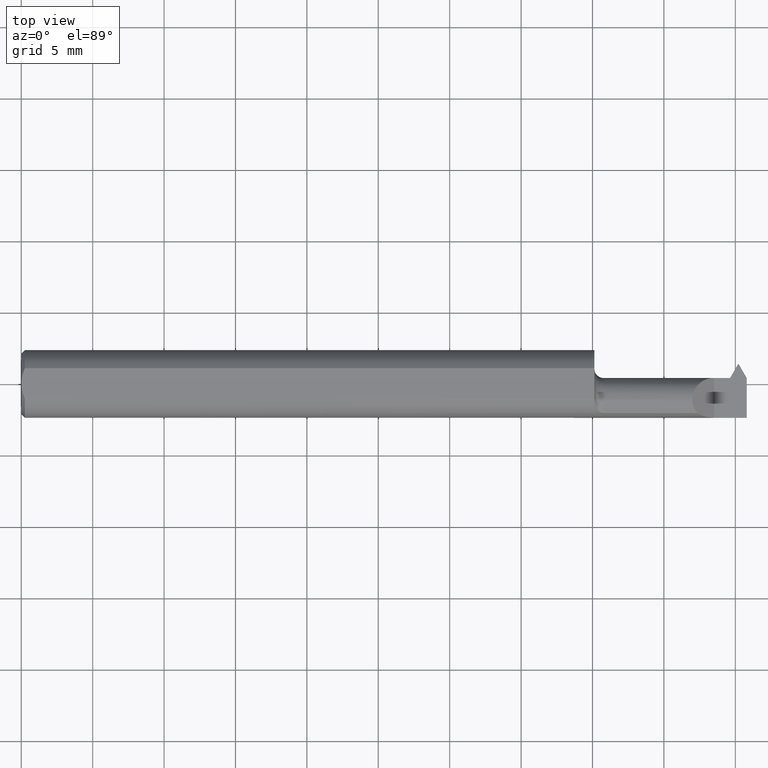
[diagram: clean part render]
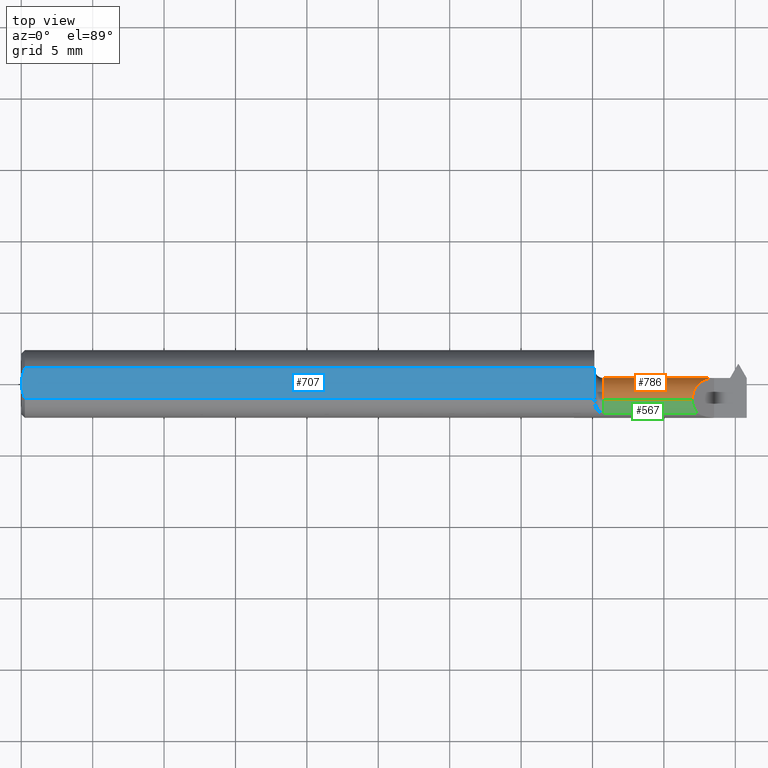
[diagram: same view with three faces highlighted in distinct colors, each labeled with its STEP entity id]
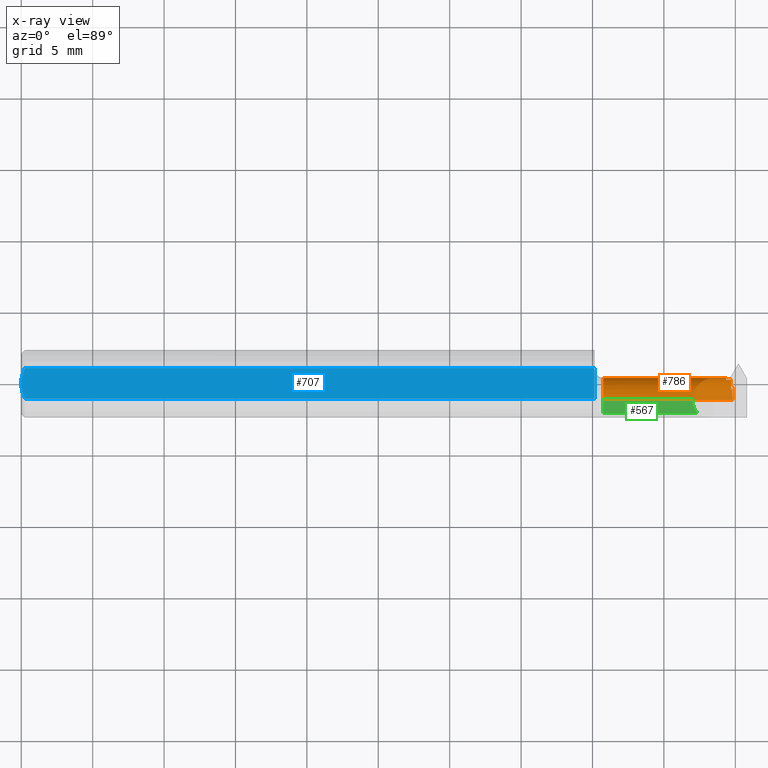
[diagram: x-ray of the same camera — body ghosted, the three highlighted faces saturated]
A machine part, top view with three faces highlighted in distinct colors.
The next image is the same camera in x-ray (body ghosted, the three faces saturated) — at least one of them is partly hidden behind the body in this view.
Their STEP definitions:

[orange] entity #786 — the highlighted cylindrical surface (edge-blend (fillet) strip) has radius 1.524 mm, axis along (-1, -0, -0).
#14 = VERTEX_POINT ( 'NONE', #877 ) ;
#19 = CYLINDRICAL_SURFACE ( 'NONE', #813, 0.06000000000000010880 ) ;
#21 = CARTESIAN_POINT ( 'NONE',  ( 1.943946148618878711, 0.01485783581530495702, -0.01565785573287657370 ) ) ;
#48 = CARTESIAN_POINT ( 'NONE',  ( 1.956990757487067079, 0.01077285534794741179, -0.02540405621110922510 ) ) ;
#50 = CIRCLE ( 'NONE', #272, 0.06000000000000010880 ) ;
#66 = CARTESIAN_POINT ( 'NONE',  ( 1.957068903166937490, 0.01029554025176964566, -0.02636921982137713227 ) ) ;
#72 = EDGE_LOOP ( 'NONE', ( #730, #819, #580, #701, #646, #121, #218, #141, #680, #116, #713, #324 ) ) ;
#79 = CARTESIAN_POINT ( 'NONE',  ( 1.956697580114520996, 0.01183277195065880402, -0.02296100594190202820 ) ) ;
#85 = EDGE_CURVE ( 'NONE', #108, #246, #137, .T. ) ;
#97 = VECTOR ( 'NONE', #233, 39.37007874015748143 ) ;
#101 = CIRCLE ( 'NONE', #378, 0.06000000000000012268 ) ;
#102 = VERTEX_POINT ( 'NONE', #485 ) ;
#108 = VERTEX_POINT ( 'NONE', #624 ) ;
#113 = VERTEX_POINT ( 'NONE', #397 ) ;
#116 = ORIENTED_EDGE ( 'NONE', *, *, #85, .T. ) ;
#121 = ORIENTED_EDGE ( 'NONE', *, *, #493, .T. ) ;
#137 =( BOUNDED_CURVE ( )  B_SPLINE_CURVE ( 3, ( #748, #66, #209, #547 ),
 .UNSPECIFIED., .F., .T. ) 
 B_SPLINE_CURVE_WITH_KNOTS ( ( 4, 4 ),
 ( 3.467718172919918462, 3.480466911845812028 ),
 .UNSPECIFIED. ) 
 CURVE ( )  GEOMETRIC_REPRESENTATION_ITEM ( )  RATIONAL_B_SPLINE_CURVE ( ( 1.000000000000000000, 0.9999864558505111578, 0.9999864558505111578, 1.000000000000000000 ) ) 
 REPRESENTATION_ITEM ( '' )  );
#139 = CARTESIAN_POINT ( 'NONE',  ( 1.957135601257563362, 0.01018251012558078761, -0.02659777442929792471 ) ) ;
#141 = ORIENTED_EDGE ( 'NONE', *, *, #809, .F. ) ;
#158 = CARTESIAN_POINT ( 'NONE',  ( 1.956931742492089121, 0.01051721843676908796, -0.02590997237873919265 ) ) ;
#166 = CARTESIAN_POINT ( 'NONE',  ( 1.580000000000000071, -0.04360000000000009701, 0.06000000000000010880 ) ) ;
#169 = EDGE_CURVE ( 'NONE', #486, #390, #229, .T. ) ;
#170 = CARTESIAN_POINT ( 'NONE',  ( 1.947060689770794273, 0.01639999999999993546, 0.000000000000000000 ) ) ;
#173 = DIRECTION ( 'NONE',  ( -1.000000000000000000, -0.000000000000000000, -0.000000000000000000 ) ) ;
#195 = CARTESIAN_POINT ( 'NONE',  ( 1.962007406423369460, -0.04360000000000009701, -0.06000000000000010186 ) ) ;
#198 = DIRECTION ( 'NONE',  ( 1.000000000000000000, 0.000000000000000000, 0.000000000000000000 ) ) ;
#200 = CARTESIAN_POINT ( 'NONE',  ( 1.960841293643284189, -0.01562901005468752061, -0.05500796697060597595 ) ) ;
#209 = CARTESIAN_POINT ( 'NONE',  ( 1.957000949324736006, 0.01040711119996601784, -0.02613994936591759397 ) ) ;
#218 = ORIENTED_EDGE ( 'NONE', *, *, #340, .F. ) ;
#220 = CARTESIAN_POINT ( 'NONE',  ( 1.874852813742384994, 0.01639999999999999097, 0.03514718625761437815 ) ) ;
#229 =( BOUNDED_CURVE ( )  B_SPLINE_CURVE ( 3, ( #195, #468, #200, #762 ),
 .UNSPECIFIED., .F., .T. ) 
 B_SPLINE_CURVE_WITH_KNOTS ( ( 4, 4 ),
 ( 3.337942194439155408, 4.044391427504221426 ),
 .UNSPECIFIED. ) 
 CURVE ( )  GEOMETRIC_REPRESENTATION_ITEM ( )  RATIONAL_B_SPLINE_CURVE ( ( 1.000000000000000000, 0.9588414113059506860, 0.9588414113059506860, 1.000000000000000000 ) ) 
 REPRESENTATION_ITEM ( '' )  );
#230 = DIRECTION ( 'NONE',  ( -1.000000000000000000, -0.000000000000000000, -0.000000000000000000 ) ) ;
#233 = DIRECTION ( 'NONE',  ( -1.000000000000000000, -0.000000000000000000, -0.000000000000000000 ) ) ;
#245 = CARTESIAN_POINT ( 'NONE',  ( 1.947060689770794273, 0.01639999999999993546, 0.000000000000000000 ) ) ;
#246 = VERTEX_POINT ( 'NONE', #158 ) ;
#247 = VERTEX_POINT ( 'NONE', #703 ) ;
#249 = EDGE_CURVE ( 'NONE', #486, #247, #772, .T. ) ;
#270 = EDGE_CURVE ( 'NONE', #246, #113, #50, .T. ) ;
#272 = AXIS2_PLACEMENT_3D ( 'NONE', #715, #372, #636 ) ;
#287 = VECTOR ( 'NONE', #198, 39.37007874015748143 ) ;
#317 = CARTESIAN_POINT ( 'NONE',  ( 1.604999999999999982, -0.04360000000000009701, 0.000000000000000000 ) ) ;
#321 = FACE_OUTER_BOUND ( 'NONE', #72, .T. ) ;
#324 = ORIENTED_EDGE ( 'NONE', *, *, #427, .T. ) ;
#334 = EDGE_CURVE ( 'NONE', #798, #247, #101, .T. ) ;
#340 = EDGE_CURVE ( 'NONE', #352, #419, #602, .T. ) ;
#352 = VERTEX_POINT ( 'NONE', #600 ) ;
#372 = DIRECTION ( 'NONE',  ( -1.000000000000000000, -0.000000000000000000, -0.000000000000000000 ) ) ;
#376 = CARTESIAN_POINT ( 'NONE',  ( 1.604999999999999982, -0.04360000000000009701, 0.06000000000000012962 ) ) ;
#378 = AXIS2_PLACEMENT_3D ( 'NONE', #317, #801, #856 ) ;
#388 = VECTOR ( 'NONE', #173, 39.37007874015748143 ) ;
#390 = VERTEX_POINT ( 'NONE', #811 ) ;
#395 = LINE ( 'NONE', #604, #287 ) ;
#397 = CARTESIAN_POINT ( 'NONE',  ( 1.956931742492089121, -0.01769002762126079681, -0.05411721843676915028 ) ) ;
#416 = EDGE_CURVE ( 'NONE', #14, #798, #724, .T. ) ;
#419 = VERTEX_POINT ( 'NONE', #245 ) ;
#427 = EDGE_CURVE ( 'NONE', #113, #390, #666, .T. ) ;
#444 = CARTESIAN_POINT ( 'NONE',  ( 1.579999999999999627, 0.01183277195067015779, -0.02296100594192246672 ) ) ;
#449 = CARTESIAN_POINT ( 'NONE',  ( 1.942493461721471304, 0.01183277195067697005, -0.02296100594190596950 ) ) ;
#468 = CARTESIAN_POINT ( 'NONE',  ( 1.961690299186573894, -0.02916903645767065373, -0.06000000000000012268 ) ) ;
#472 = CARTESIAN_POINT ( 'NONE',  ( 1.956697580114520996, 0.01183277195065880402, -0.02296100594190202820 ) ) ;
#485 = CARTESIAN_POINT ( 'NONE',  ( 1.910000000000000142, 0.01640000000000000138, 5.143516556418903512E-17 ) ) ;
#486 = VERTEX_POINT ( 'NONE', #835 ) ;
#493 = EDGE_CURVE ( 'NONE', #102, #419, #395, .T. ) ;
#495 = CARTESIAN_POINT ( 'NONE',  ( 1.580000000000000071, -0.04360000000000009007, -0.06000000000000010880 ) ) ;
#517 = CARTESIAN_POINT ( 'NONE',  ( 1.959565221403364088, -0.004651785923931341452, -0.04564029601442978756 ) ) ;
#527 = DIRECTION ( 'NONE',  ( 0.000000000000000000, 0.000000000000000000, 1.000000000000000000 ) ) ;
#547 = CARTESIAN_POINT ( 'NONE',  ( 1.956931742492089121, 0.01051721843676908796, -0.02590997237873919265 ) ) ;
#560 = EDGE_CURVE ( 'NONE', #108, #720, #699, .T. ) ;
#580 = ORIENTED_EDGE ( 'NONE', *, *, #334, .F. ) ;
#585 = CARTESIAN_POINT ( 'NONE',  ( 1.959229519897393690, -0.008617314826187820465, -0.04902437285216700025 ) ) ;
#600 = CARTESIAN_POINT ( 'NONE',  ( 1.942493461721471304, 0.01183277195067697005, -0.02296100594190596950 ) ) ;
#602 =( BOUNDED_CURVE ( )  B_SPLINE_CURVE ( 3, ( #449, #21, #793, #170 ),
 .UNSPECIFIED., .F., .T. ) 
 B_SPLINE_CURVE_WITH_KNOTS ( ( 4, 4 ),
 ( 1.178097245096163315, 1.570796326794896780 ),
 .UNSPECIFIED. ) 
 CURVE ( )  GEOMETRIC_REPRESENTATION_ITEM ( )  RATIONAL_B_SPLINE_CURVE ( ( 1.000000000000000000, 0.9871901869354863246, 0.9871901869354863246, 1.000000000000000000 ) ) 
 REPRESENTATION_ITEM ( '' )  );
#604 = CARTESIAN_POINT ( 'NONE',  ( 1.580000000000000071, 0.01640000000000000138, 5.143516556418903512E-17 ) ) ;
#624 = CARTESIAN_POINT ( 'NONE',  ( 1.957135601257563362, 0.01018251012558078761, -0.02659777442929792471 ) ) ;
#635 = CARTESIAN_POINT ( 'NONE',  ( 1.910000000000000142, 0.01640000000000000138, 5.143516556418903512E-17 ) ) ;
#636 = DIRECTION ( 'NONE',  ( 0.000000000000000000, 8.537024980200807027E-16, -1.000000000000000000 ) ) ;
#642 = VECTOR ( 'NONE', #230, 39.37007874015748143 ) ;
#646 = ORIENTED_EDGE ( 'NONE', *, *, #667, .T. ) ;
#655 = CARTESIAN_POINT ( 'NONE',  ( 1.580000000000000071, -0.04360000000000009701, 0.000000000000000000 ) ) ;
#666 =( BOUNDED_CURVE ( )  B_SPLINE_CURVE ( 3, ( #872, #860, #585, #517 ),
 .UNSPECIFIED., .F., .T. ) 
 B_SPLINE_CURVE_WITH_KNOTS ( ( 4, 4 ),
 ( 2.802718395333773760, 3.062643723257409079 ),
 .UNSPECIFIED. ) 
 CURVE ( )  GEOMETRIC_REPRESENTATION_ITEM ( )  RATIONAL_B_SPLINE_CURVE ( ( 1.000000000000000000, 0.9943778220326511263, 0.9943778220326511263, 1.000000000000000000 ) ) 
 REPRESENTATION_ITEM ( '' )  );
#667 = EDGE_CURVE ( 'NONE', #14, #102, #790, .T. ) ;
#680 = ORIENTED_EDGE ( 'NONE', *, *, #560, .F. ) ;
#691 = CARTESIAN_POINT ( 'NONE',  ( 1.956844696498698521, 0.01132314584663564848, -0.02419135219402172507 ) ) ;
#698 = CARTESIAN_POINT ( 'NONE',  ( 1.849999999999999423, -0.04360000000000009701, 0.06000000000000010880 ) ) ;
#699 =( BOUNDED_CURVE ( )  B_SPLINE_CURVE ( 3, ( #139, #48, #691, #472 ),
 .UNSPECIFIED., .F., .T. ) 
 B_SPLINE_CURVE_WITH_KNOTS ( ( 4, 4 ),
 ( 4.449465877166729477, 4.516039439535262545 ),
 .UNSPECIFIED. ) 
 CURVE ( )  GEOMETRIC_REPRESENTATION_ITEM ( )  RATIONAL_B_SPLINE_CURVE ( ( 1.000000000000000000, 0.9996306975005851969, 0.9996306975005851969, 1.000000000000000000 ) ) 
 REPRESENTATION_ITEM ( '' )  );
#701 = ORIENTED_EDGE ( 'NONE', *, *, #416, .F. ) ;
#702 = CARTESIAN_POINT ( 'NONE',  ( 1.849999999999999201, -0.008452813742385748355, 0.06000000000000010880 ) ) ;
#703 = CARTESIAN_POINT ( 'NONE',  ( 1.604999999999999982, -0.04360000000000009007, -0.06000000000000012962 ) ) ;
#713 = ORIENTED_EDGE ( 'NONE', *, *, #270, .T. ) ;
#715 = CARTESIAN_POINT ( 'NONE',  ( 1.956931742492089121, -0.04360000000000009701, 0.000000000000000000 ) ) ;
#720 = VERTEX_POINT ( 'NONE', #79 ) ;
#724 = LINE ( 'NONE', #166, #97 ) ;
#730 = ORIENTED_EDGE ( 'NONE', *, *, #169, .F. ) ;
#748 = CARTESIAN_POINT ( 'NONE',  ( 1.957135601257563362, 0.01018251012558078761, -0.02659777442929792471 ) ) ;
#762 = CARTESIAN_POINT ( 'NONE',  ( 1.959565221403364088, -0.004651785923931341452, -0.04564029601442978756 ) ) ;
#772 = LINE ( 'NONE', #495, #642 ) ;
#786 = ADVANCED_FACE ( 'NONE', ( #321 ), #19, .T. ) ;
#790 =( BOUNDED_CURVE ( )  B_SPLINE_CURVE ( 3, ( #698, #702, #220, #635 ),
 .UNSPECIFIED., .F., .T. ) 
 B_SPLINE_CURVE_WITH_KNOTS ( ( 4, 4 ),
 ( 0.000000000000000000, 1.570796326794896114 ),
 .UNSPECIFIED. ) 
 CURVE ( )  GEOMETRIC_REPRESENTATION_ITEM ( )  RATIONAL_B_SPLINE_CURVE ( ( 1.000000000000000000, 0.8047378541243650485, 0.8047378541243650485, 1.000000000000000000 ) ) 
 REPRESENTATION_ITEM ( '' )  );
#793 = CARTESIAN_POINT ( 'NONE',  ( 1.945488312803573594, 0.01640000000000002914, -0.007904872823817171018 ) ) ;
#798 = VERTEX_POINT ( 'NONE', #376 ) ;
#801 = DIRECTION ( 'NONE',  ( -1.000000000000000000, -0.000000000000000000, -0.000000000000000000 ) ) ;
#809 = EDGE_CURVE ( 'NONE', #720, #352, #867, .T. ) ;
#811 = CARTESIAN_POINT ( 'NONE',  ( 1.959565221403364088, -0.004651785923931341452, -0.04564029601442978756 ) ) ;
#813 = AXIS2_PLACEMENT_3D ( 'NONE', #655, #858, #527 ) ;
#819 = ORIENTED_EDGE ( 'NONE', *, *, #249, .T. ) ;
#835 = CARTESIAN_POINT ( 'NONE',  ( 1.962007406423369460, -0.04360000000000009701, -0.06000000000000010186 ) ) ;
#856 = DIRECTION ( 'NONE',  ( 0.000000000000000000, 0.000000000000000000, 1.000000000000000000 ) ) ;
#858 = DIRECTION ( 'NONE',  ( -1.000000000000000000, -0.000000000000000000, -0.000000000000000000 ) ) ;
#860 = CARTESIAN_POINT ( 'NONE',  ( 1.958346730393939250, -0.01298796798183884937, -0.05186598973544634394 ) ) ;
#867 = LINE ( 'NONE', #444, #388 ) ;
#872 = CARTESIAN_POINT ( 'NONE',  ( 1.956931742492089121, -0.01769002762126079681, -0.05411721843676915028 ) ) ;
#877 = CARTESIAN_POINT ( 'NONE',  ( 1.849999999999999423, -0.04360000000000009701, 0.06000000000000010880 ) ) ;

[blue] entity #707 — the highlighted planar face has unit normal (0, 0, 1).
#16 = DIRECTION ( 'NONE',  ( 0.000000000000000000, 1.000000000000000000, 0.000000000000000000 ) ) ;
#30 = LINE ( 'NONE', #311, #176 ) ;
#35 = ORIENTED_EDGE ( 'NONE', *, *, #142, .T. ) ;
#43 = CARTESIAN_POINT ( 'NONE',  ( 0.000000000000000000, 0.000000000000000000, 0.08359999999999992437 ) ) ;
#70 = DIRECTION ( 'NONE',  ( 1.000000000000000000, 0.000000000000000000, -0.000000000000000000 ) ) ;
#73 = PLANE ( 'NONE',  #333 ) ;
#81 = EDGE_CURVE ( 'NONE', #263, #606, #621, .T. ) ;
#94 = CARTESIAN_POINT ( 'NONE',  ( 1.580028097935717968, -0.03747530080496248167, 0.08359999999999992437 ) ) ;
#140 = LINE ( 'NONE', #351, #654 ) ;
#142 = EDGE_CURVE ( 'NONE', #554, #565, #140, .T. ) ;
#161 = CARTESIAN_POINT ( 'NONE',  ( 1.580036165555774419, -0.03978508114644318389, 0.08359999999999995213 ) ) ;
#175 = VERTEX_POINT ( 'NONE', #479 ) ;
#176 = VECTOR ( 'NONE', #236, 39.37007874015748143 ) ;
#187 = EDGE_CURVE ( 'NONE', #175, #554, #578, .T. ) ;
#207 = EDGE_LOOP ( 'NONE', ( #583, #470, #625, #35, #827, #447 ) ) ;
#221 = EDGE_CURVE ( 'NONE', #606, #565, #644, .T. ) ;
#231 = B_SPLINE_CURVE_WITH_KNOTS ( 'NONE', 3,
 ( #232, #161, #94, #380, #863, #239 ),
 .UNSPECIFIED., .F., .F.,
 ( 4, 2, 4 ),
 ( 0.007267142211220029187, 0.007444781993268449402, 0.007622421775316868750 ),
 .UNSPECIFIED. ) ;
#232 = CARTESIAN_POINT ( 'NONE',  ( 1.580038474846761076, -0.04209513035969859179, 0.08359999999999992437 ) ) ;
#236 = DIRECTION ( 'NONE',  ( 1.000000000000000000, 0.000000000000000000, 0.000000000000000000 ) ) ;
#239 = CARTESIAN_POINT ( 'NONE',  ( 1.580000000000000071, -0.02823640667031252979, 0.08359999999999992437 ) ) ;
#255 = CARTESIAN_POINT ( 'NONE',  ( 1.580000000000000071, 0.04209513035969860567, 0.08359999999999989662 ) ) ;
#263 = VERTEX_POINT ( 'NONE', #711 ) ;
#311 = CARTESIAN_POINT ( 'NONE',  ( 0.000000000000000000, -0.04209513035969860567, 0.08359999999999989662 ) ) ;
#333 = AXIS2_PLACEMENT_3D ( 'NONE', #354, #414, #70 ) ;
#342 = CARTESIAN_POINT ( 'NONE',  ( 0.000000000000000000, 0.000000000000000000, 0.08359999999999992437 ) ) ;
#351 = CARTESIAN_POINT ( 'NONE',  ( 0.000000000000000000, 0.04209513035969860567, 0.08359999999999989662 ) ) ;
#354 = CARTESIAN_POINT ( 'NONE',  ( 2.191425808082400728, 0.09360000000000001652, 0.08359999999999992437 ) ) ;
#365 = CARTESIAN_POINT ( 'NONE',  ( 0.009999999999999877043, 0.04209513035969860567, 0.08359999999999989662 ) ) ;
#379 = EDGE_CURVE ( 'NONE', #263, #774, #30, .T. ) ;
#380 = CARTESIAN_POINT ( 'NONE',  ( 1.580009987567084773, -0.03285560867514938921, 0.08359999999999991049 ) ) ;
#414 = DIRECTION ( 'NONE',  ( 0.000000000000000000, 0.000000000000000000, 1.000000000000000000 ) ) ;
#429 = CARTESIAN_POINT ( 'NONE',  ( 0.004492168231814527152, 0.02859366993844192698, 0.08359999999999991049 ) ) ;
#431 = FACE_OUTER_BOUND ( 'NONE', #207, .T. ) ;
#432 = CARTESIAN_POINT ( 'NONE',  ( 0.000000000000000000, 0.000000000000000000, 0.08359999999999992437 ) ) ;
#447 = ORIENTED_EDGE ( 'NONE', *, *, #81, .F. ) ;
#464 = CARTESIAN_POINT ( 'NONE',  ( 0.009999999999999877043, -0.04209513035969860567, 0.08359999999999989662 ) ) ;
#470 = ORIENTED_EDGE ( 'NONE', *, *, #870, .T. ) ;
#479 = CARTESIAN_POINT ( 'NONE',  ( 1.580000000000000071, -0.02823640667031252979, 0.08359999999999992437 ) ) ;
#534 = CARTESIAN_POINT ( 'NONE',  ( 0.009999999999999877043, 0.04209513035969860567, 0.08359999999999989662 ) ) ;
#538 = DIRECTION ( 'NONE',  ( -1.000000000000000000, -0.000000000000000000, -0.000000000000000000 ) ) ;
#552 = CARTESIAN_POINT ( 'NONE',  ( -2.262195879907695790E-16, -0.01462709520273676109, 0.08359999999999992437 ) ) ;
#554 = VERTEX_POINT ( 'NONE', #255 ) ;
#565 = VERTEX_POINT ( 'NONE', #534 ) ;
#578 = LINE ( 'NONE', #648, #767 ) ;
#583 = ORIENTED_EDGE ( 'NONE', *, *, #379, .T. ) ;
#606 = VERTEX_POINT ( 'NONE', #43 ) ;
#621 = B_SPLINE_CURVE_WITH_KNOTS ( 'NONE', 3,
 ( #464, #696, #552, #342 ),
 .UNSPECIFIED., .F., .F.,
 ( 4, 4 ),
 ( 0.0006429768761302141322, 0.001744210492668867019 ),
 .UNSPECIFIED. ) ;
#625 = ORIENTED_EDGE ( 'NONE', *, *, #187, .T. ) ;
#644 = B_SPLINE_CURVE_WITH_KNOTS ( 'NONE', 3,
 ( #432, #652, #853, #429, #847, #365 ),
 .UNSPECIFIED., .F., .F.,
 ( 4, 2, 4 ),
 ( 0.001744210492668867019, 0.002295110172257195866, 0.002846009851845524713 ),
 .UNSPECIFIED. ) ;
#648 = CARTESIAN_POINT ( 'NONE',  ( 1.580000000000000071, 0.09360000000000001652, 0.08359999999999992437 ) ) ;
#652 = CARTESIAN_POINT ( 'NONE',  ( -2.346264590017496984E-16, 0.007317304829308919449, 0.08359999999999995213 ) ) ;
#654 = VECTOR ( 'NONE', #538, 39.37007874015748143 ) ;
#696 = CARTESIAN_POINT ( 'NONE',  ( 0.004072204388638599876, -0.02891446873729323561, 0.08359999999999992437 ) ) ;
#707 = ADVANCED_FACE ( 'NONE', ( #431 ), #73, .T. ) ;
#711 = CARTESIAN_POINT ( 'NONE',  ( 0.009999999999999877043, -0.04209513035969860567, 0.08359999999999989662 ) ) ;
#767 = VECTOR ( 'NONE', #16, 39.37007874015748143 ) ;
#774 = VERTEX_POINT ( 'NONE', #849 ) ;
#827 = ORIENTED_EDGE ( 'NONE', *, *, #221, .F. ) ;
#847 = CARTESIAN_POINT ( 'NONE',  ( 0.007036739039485557373, 0.03550621559607056860, 0.08359999999999992437 ) ) ;
#849 = CARTESIAN_POINT ( 'NONE',  ( 1.580038474846761076, -0.04209513035969859179, 0.08359999999999992437 ) ) ;
#853 = CARTESIAN_POINT ( 'NONE',  ( 0.0009807498324115896879, 0.01453516766257749275, 0.08359999999999992437 ) ) ;
#863 = CARTESIAN_POINT ( 'NONE',  ( 1.580000000000000293, -0.03054570635082551333, 0.08359999999999992437 ) ) ;
#870 = EDGE_CURVE ( 'NONE', #774, #175, #231, .T. ) ;

[green] entity #567 — the highlighted cylindrical surface (edge-blend (fillet) strip) has radius 1.524 mm, axis along (-1, -0, -0).
#5 = CARTESIAN_POINT ( 'NONE',  ( 1.604999999999999982, -0.08098532110091725966, 0.04692907165266890779 ) ) ;
#13 = EDGE_CURVE ( 'NONE', #851, #14, #469, .T. ) ;
#14 = VERTEX_POINT ( 'NONE', #877 ) ;
#61 = VECTOR ( 'NONE', #261, 39.37007874015748143 ) ;
#67 = EDGE_CURVE ( 'NONE', #744, #851, #752, .T. ) ;
#97 = VECTOR ( 'NONE', #233, 39.37007874015748143 ) ;
#120 = DIRECTION ( 'NONE',  ( 0.000000000000000000, 0.000000000000000000, 1.000000000000000000 ) ) ;
#134 = DIRECTION ( 'NONE',  ( -1.000000000000000000, -0.000000000000000000, -0.000000000000000000 ) ) ;
#149 = ORIENTED_EDGE ( 'NONE', *, *, #416, .T. ) ;
#159 = EDGE_CURVE ( 'NONE', #744, #798, #501, .T. ) ;
#166 = CARTESIAN_POINT ( 'NONE',  ( 1.580000000000000071, -0.04360000000000009701, 0.06000000000000010880 ) ) ;
#182 = AXIS2_PLACEMENT_3D ( 'NONE', #543, #826, #120 ) ;
#204 = CYLINDRICAL_SURFACE ( 'NONE', #291, 0.06000000000000010880 ) ;
#233 = DIRECTION ( 'NONE',  ( -1.000000000000000000, -0.000000000000000000, -0.000000000000000000 ) ) ;
#242 = CARTESIAN_POINT ( 'NONE',  ( 1.849999999999999423, -0.05731375143557373986, 0.06000000000000012268 ) ) ;
#256 = CARTESIAN_POINT ( 'NONE',  ( 1.863070928347330790, -0.08098532110091727354, 0.04692907165266886615 ) ) ;
#261 = DIRECTION ( 'NONE',  ( 1.000000000000000000, 0.000000000000000000, 0.000000000000000000 ) ) ;
#264 = DIRECTION ( 'NONE',  ( 0.000000000000000000, 0.000000000000000000, 1.000000000000000000 ) ) ;
#269 = FACE_OUTER_BOUND ( 'NONE', #319, .T. ) ;
#291 = AXIS2_PLACEMENT_3D ( 'NONE', #330, #134, #264 ) ;
#319 = EDGE_LOOP ( 'NONE', ( #670, #149, #526, #576 ) ) ;
#330 = CARTESIAN_POINT ( 'NONE',  ( 1.580000000000000071, -0.04360000000000009701, 0.000000000000000000 ) ) ;
#376 = CARTESIAN_POINT ( 'NONE',  ( 1.604999999999999982, -0.04360000000000009701, 0.06000000000000012962 ) ) ;
#416 = EDGE_CURVE ( 'NONE', #14, #798, #724, .T. ) ;
#437 = CARTESIAN_POINT ( 'NONE',  ( 1.863070928347330790, -0.08098532110091727354, 0.04692907165266886615 ) ) ;
#469 =( BOUNDED_CURVE ( )  B_SPLINE_CURVE ( 3, ( #256, #649, #242, #781 ),
 .UNSPECIFIED., .F., .F. ) 
 B_SPLINE_CURVE_WITH_KNOTS ( ( 4, 4 ),
 ( 5.610499824220562815, 6.283185307179586232 ),
 .UNSPECIFIED. ) 
 CURVE ( )  GEOMETRIC_REPRESENTATION_ITEM ( )  RATIONAL_B_SPLINE_CURVE ( ( 1.000000000000000000, 0.9626453375995702721, 0.9626453375995702721, 1.000000000000000000 ) ) 
 REPRESENTATION_ITEM ( '' )  );
#501 = CIRCLE ( 'NONE', #182, 0.06000000000000012268 ) ;
#526 = ORIENTED_EDGE ( 'NONE', *, *, #159, .F. ) ;
#543 = CARTESIAN_POINT ( 'NONE',  ( 1.604999999999999982, -0.04360000000000009701, 0.000000000000000000 ) ) ;
#567 = ADVANCED_FACE ( 'NONE', ( #269 ), #204, .T. ) ;
#576 = ORIENTED_EDGE ( 'NONE', *, *, #67, .T. ) ;
#610 = CARTESIAN_POINT ( 'NONE',  ( 1.778530344885397296, -0.08098532110091721803, 0.04692907165266892860 ) ) ;
#649 = CARTESIAN_POINT ( 'NONE',  ( 1.854526044998712875, -0.07025909403846850032, 0.05547395500128696200 ) ) ;
#670 = ORIENTED_EDGE ( 'NONE', *, *, #13, .T. ) ;
#724 = LINE ( 'NONE', #166, #97 ) ;
#744 = VERTEX_POINT ( 'NONE', #5 ) ;
#752 = LINE ( 'NONE', #610, #61 ) ;
#781 = CARTESIAN_POINT ( 'NONE',  ( 1.849999999999999423, -0.04360000000000009701, 0.06000000000000010880 ) ) ;
#798 = VERTEX_POINT ( 'NONE', #376 ) ;
#826 = DIRECTION ( 'NONE',  ( -1.000000000000000000, -0.000000000000000000, -0.000000000000000000 ) ) ;
#851 = VERTEX_POINT ( 'NONE', #437 ) ;
#877 = CARTESIAN_POINT ( 'NONE',  ( 1.849999999999999423, -0.04360000000000009701, 0.06000000000000010880 ) ) ;